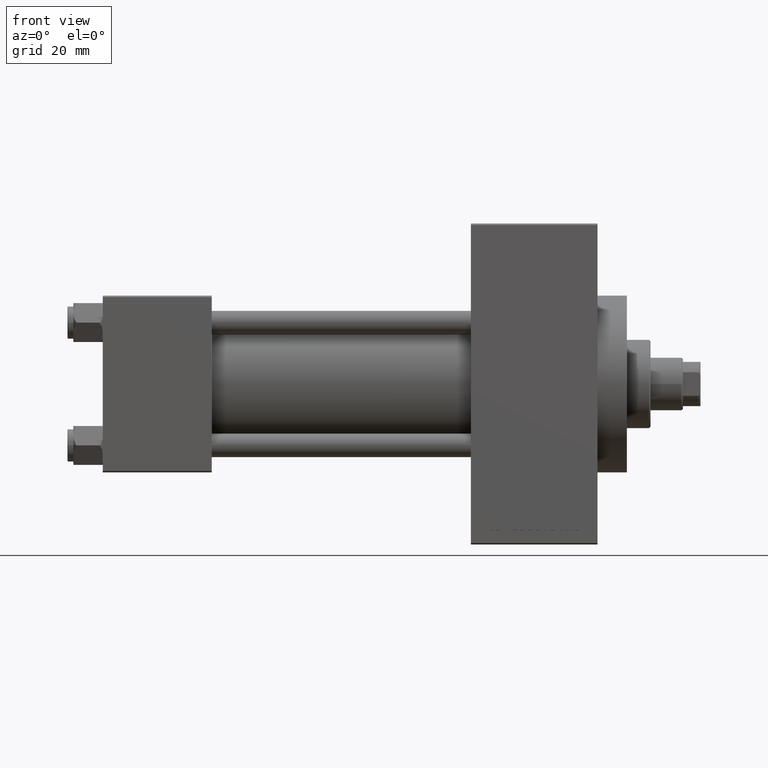
[diagram: clean part render]
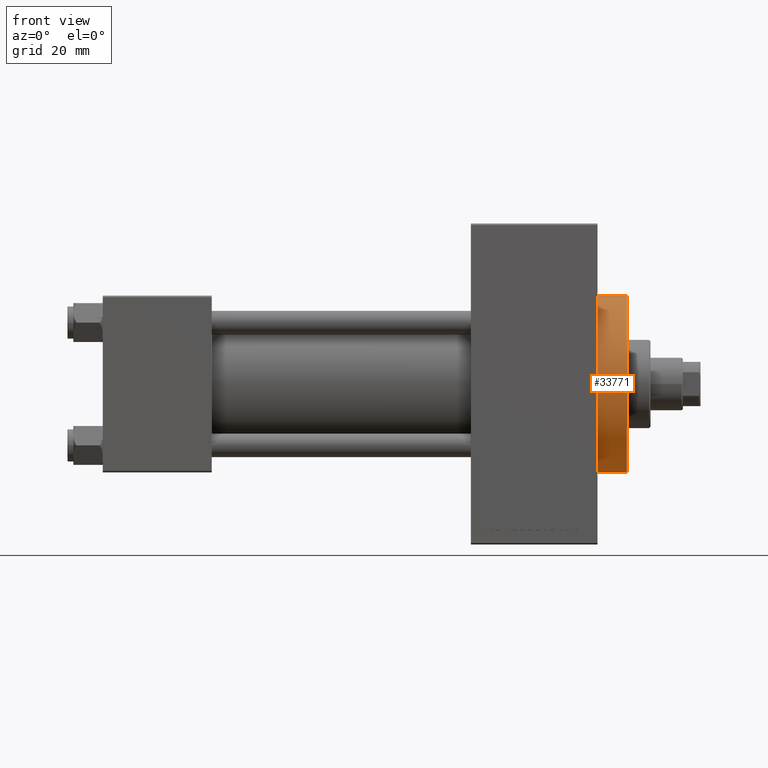
[diagram: same view with one face highlighted and labeled with its STEP entity id]
A machine part, front view. The second image highlights one B-rep face of the part: STEP entity #33771.
In plain terms, the highlighted cylindrical surface (partial cylindrical patch) has radius 30 mm, axis along (-1, -0, -0).
Its self-contained STEP definition (entity closure, byte-faithful):
#60 = AXIS2_PLACEMENT_3D ( 'NONE', #28721, #29201, #6476 ) ;
#904 = EDGE_LOOP ( 'NONE', ( #10829, #33060, #42159, #16322, #19865 ) ) ;
#1390 = VECTOR ( 'NONE', #20299, 1000.000000000000000 ) ;
#2138 = FACE_OUTER_BOUND ( 'NONE', #904, .T. ) ;
#2371 = DIRECTION ( 'NONE',  ( 0.000000000000000000, 0.000000000000000000, 1.000000000000000000 ) ) ;
#2900 = CARTESIAN_POINT ( 'NONE',  ( 167.9999999999999716, 0.000000000000000000, 0.000000000000000000 ) ) ;
#4508 = CIRCLE ( 'NONE', #28145, 30.00000000000000000 ) ;
#6455 = AXIS2_PLACEMENT_3D ( 'NONE', #2900, #31601, #17252 ) ;
#6476 = DIRECTION ( 'NONE',  ( 0.000000000000000000, 0.000000000000000000, -1.000000000000000000 ) ) ;
#6726 = CARTESIAN_POINT ( 'NONE',  ( 167.9999999999999716, -30.00000000000000000, 0.000000000000000000 ) ) ;
#6917 = CIRCLE ( 'NONE', #60, 30.00000000000000000 ) ;
#9041 = AXIS2_PLACEMENT_3D ( 'NONE', #16502, #31308, #2371 ) ;
#10829 = ORIENTED_EDGE ( 'NONE', *, *, #33718, .F. ) ;
#11464 = DIRECTION ( 'NONE',  ( -1.000000000000000000, -0.000000000000000000, -0.000000000000000000 ) ) ;
#16322 = ORIENTED_EDGE ( 'NONE', *, *, #42202, .T. ) ;
#16502 = CARTESIAN_POINT ( 'NONE',  ( 178.0000000000000000, 0.000000000000000000, 0.000000000000000000 ) ) ;
#17252 = DIRECTION ( 'NONE',  ( 0.000000000000000000, 0.000000000000000000, -1.000000000000000000 ) ) ;
#18163 = CARTESIAN_POINT ( 'NONE',  ( 178.0000000000000000, 0.000000000000000000, 30.00000000000000000 ) ) ;
#19865 = ORIENTED_EDGE ( 'NONE', *, *, #22586, .T. ) ;
#20009 = VERTEX_POINT ( 'NONE', #31048 ) ;
#20299 = DIRECTION ( 'NONE',  ( -1.000000000000000000, -0.000000000000000000, -0.000000000000000000 ) ) ;
#22586 = EDGE_CURVE ( 'NONE', #46549, #45535, #30914, .T. ) ;
#24039 = CARTESIAN_POINT ( 'NONE',  ( 178.0000000000000000, 0.000000000000000000, 30.00000000000000000 ) ) ;
#24702 = VERTEX_POINT ( 'NONE', #28938 ) ;
#25610 = VERTEX_POINT ( 'NONE', #24039 ) ;
#25807 = LINE ( 'NONE', #18163, #28874 ) ;
#28145 = AXIS2_PLACEMENT_3D ( 'NONE', #45264, #45032, #37629 ) ;
#28721 = CARTESIAN_POINT ( 'NONE',  ( 178.0000000000000000, 0.000000000000000000, 0.000000000000000000 ) ) ;
#28874 = VECTOR ( 'NONE', #11464, 1000.000000000000000 ) ;
#28938 = CARTESIAN_POINT ( 'NONE',  ( 167.9999999999999716, 0.000000000000000000, 30.00000000000000000 ) ) ;
#29201 = DIRECTION ( 'NONE',  ( 1.000000000000000000, 0.000000000000000000, 0.000000000000000000 ) ) ;
#30914 = CIRCLE ( 'NONE', #6455, 30.00000000000000000 ) ;
#31048 = CARTESIAN_POINT ( 'NONE',  ( 178.0000000000000000, 3.673940397442059178E-15, -30.00000000000000000 ) ) ;
#31308 = DIRECTION ( 'NONE',  ( -1.000000000000000000, -0.000000000000000000, -0.000000000000000000 ) ) ;
#31601 = DIRECTION ( 'NONE',  ( 1.000000000000000000, 0.000000000000000000, 0.000000000000000000 ) ) ;
#33060 = ORIENTED_EDGE ( 'NONE', *, *, #46545, .F. ) ;
#33718 = EDGE_CURVE ( 'NONE', #20009, #45535, #42736, .T. ) ;
#33771 = ADVANCED_FACE ( 'NONE', ( #2138 ), #34662, .T. ) ;
#34662 = CYLINDRICAL_SURFACE ( 'NONE', #9041, 30.00000000000000000 ) ;
#35119 = CARTESIAN_POINT ( 'NONE',  ( 178.0000000000000000, 3.673940397442059178E-15, -30.00000000000000000 ) ) ;
#37629 = DIRECTION ( 'NONE',  ( 0.000000000000000000, 0.000000000000000000, -1.000000000000000000 ) ) ;
#38289 = CARTESIAN_POINT ( 'NONE',  ( 167.9999999999999716, 3.673940397442059178E-15, -30.00000000000000000 ) ) ;
#40147 = EDGE_CURVE ( 'NONE', #25610, #24702, #25807, .T. ) ;
#42159 = ORIENTED_EDGE ( 'NONE', *, *, #40147, .T. ) ;
#42202 = EDGE_CURVE ( 'NONE', #24702, #46549, #4508, .T. ) ;
#42736 = LINE ( 'NONE', #35119, #1390 ) ;
#45032 = DIRECTION ( 'NONE',  ( 1.000000000000000000, 0.000000000000000000, 0.000000000000000000 ) ) ;
#45264 = CARTESIAN_POINT ( 'NONE',  ( 167.9999999999999716, 0.000000000000000000, 0.000000000000000000 ) ) ;
#45535 = VERTEX_POINT ( 'NONE', #38289 ) ;
#46545 = EDGE_CURVE ( 'NONE', #25610, #20009, #6917, .T. ) ;
#46549 = VERTEX_POINT ( 'NONE', #6726 ) ;